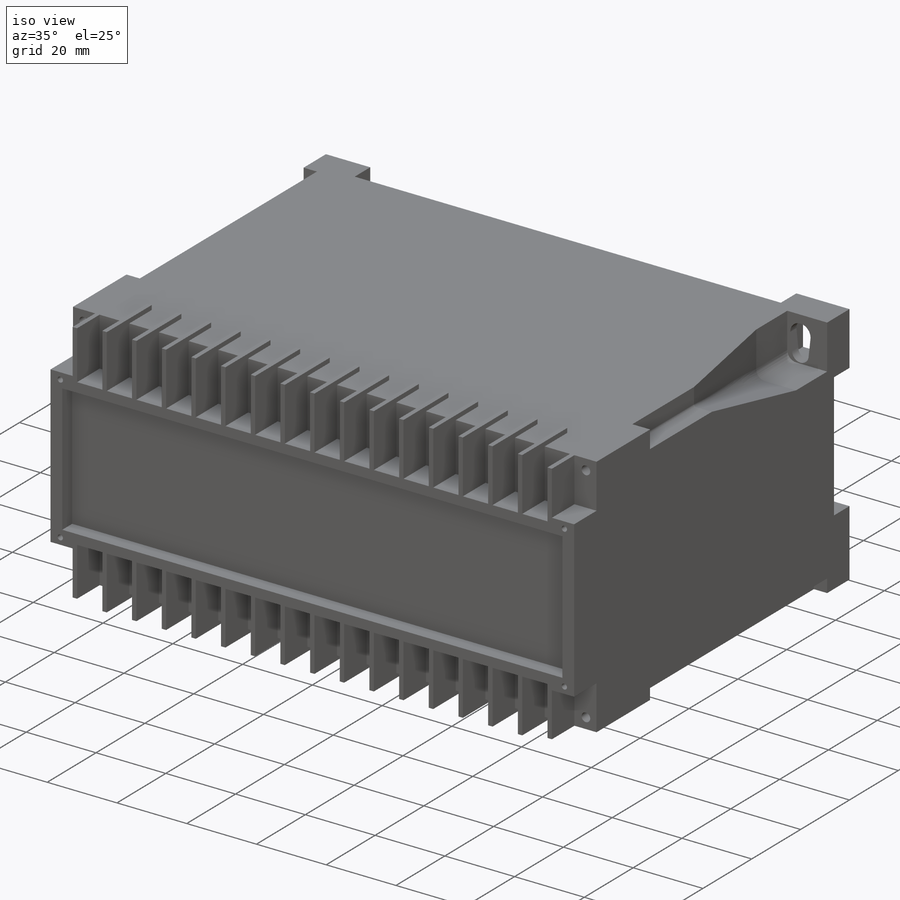
[diagram: iso view]
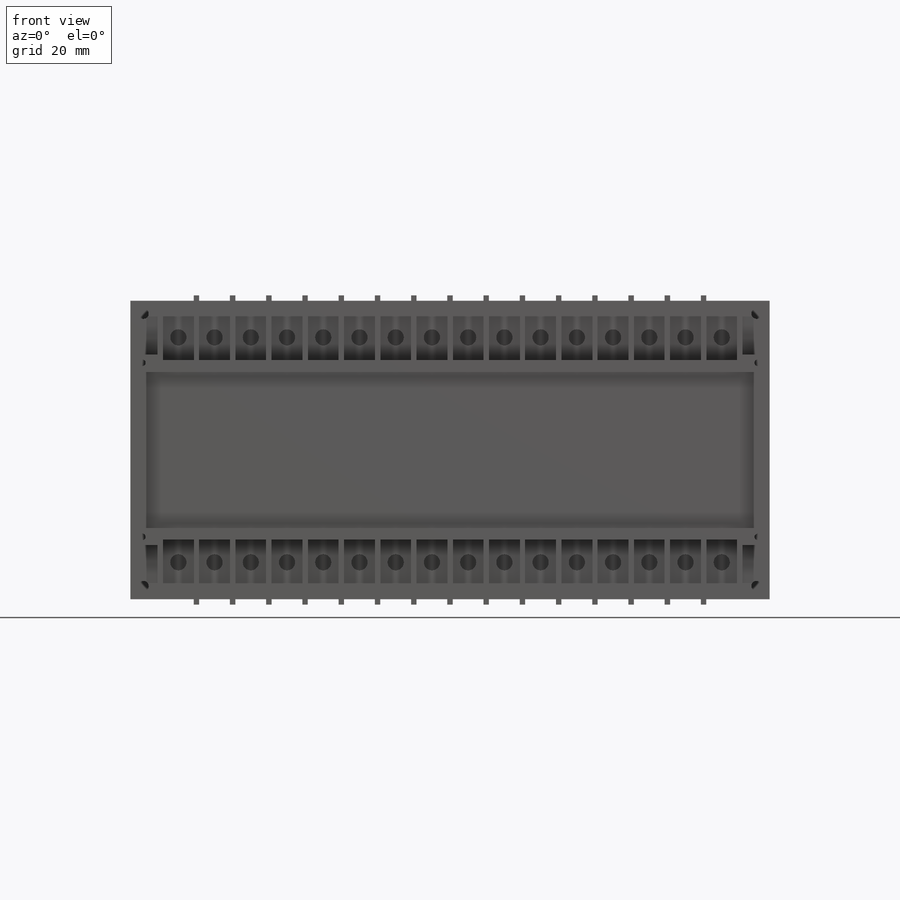
[diagram: front view]
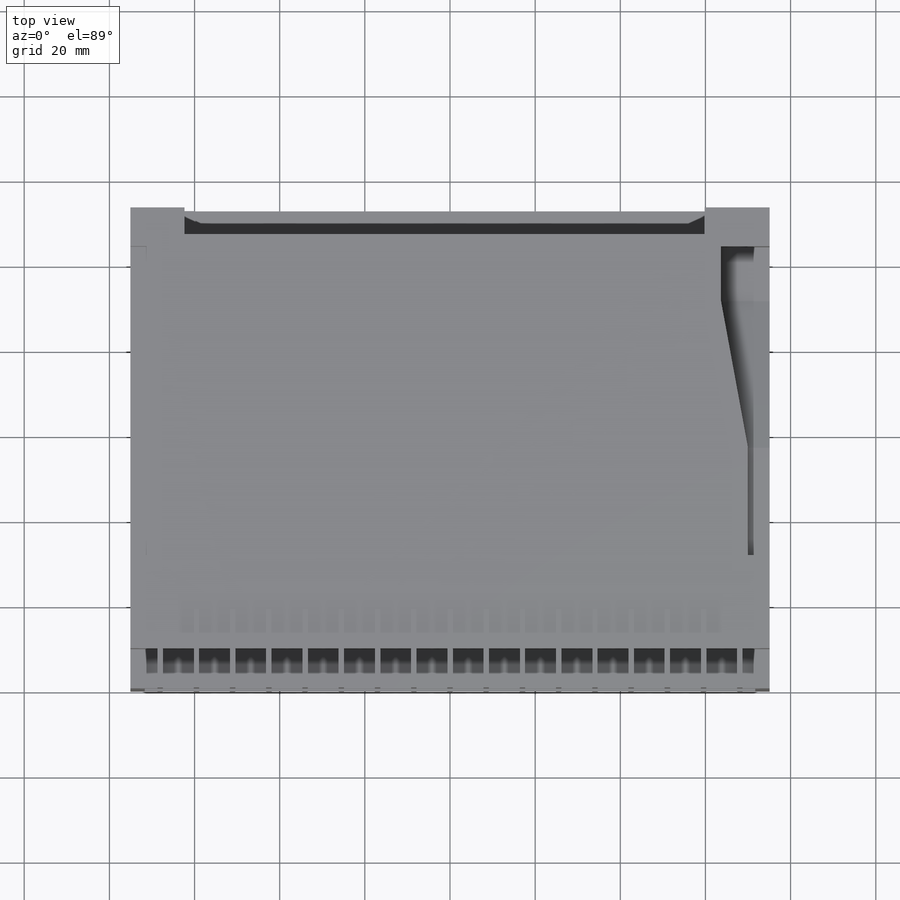
[diagram: top view]
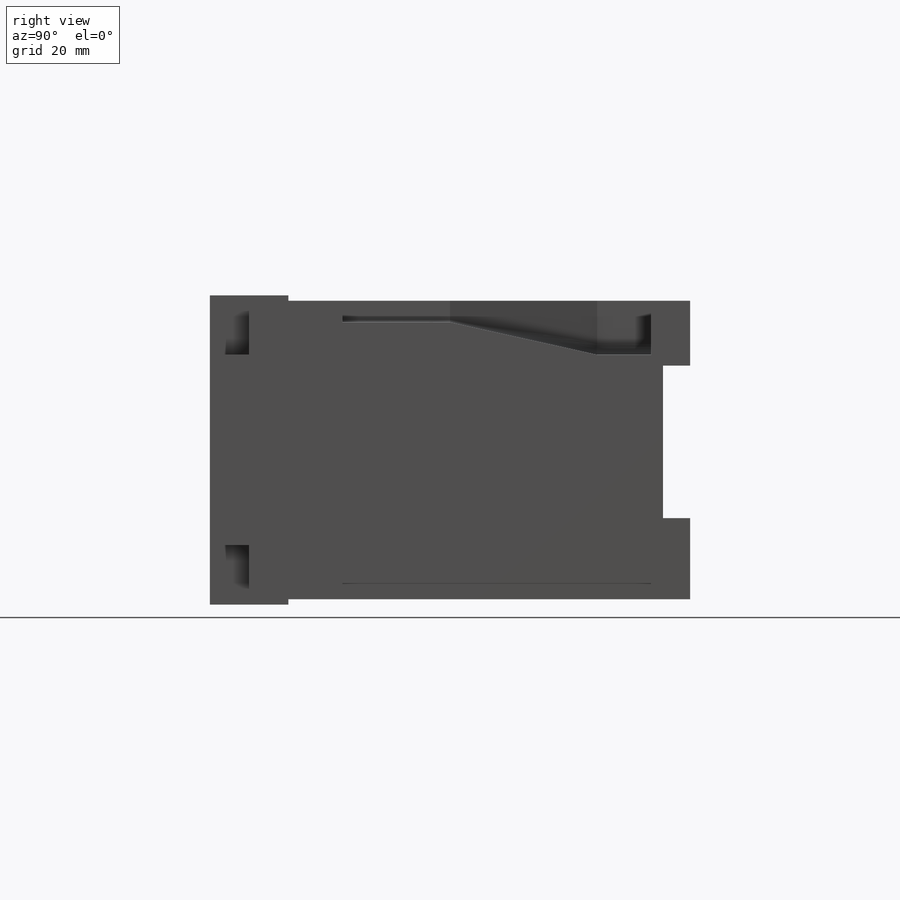
[diagram: right view]
SOLIDWORKS PART (.sldprt)
format: sldprt  version: not decoded by parser v0  size: 750,592 bytes
history: native  units: mm
features: sketch x13, cut_extrude x11, plane x3, extrude x2, mirror x2, pattern_linear x2, fillet x2, material x1 (+11 scaffold rows collapsed)
feature tree (47):
  scaffold x11  (default folders/planes/origin — collapsed)
  material  "Material <not specified>"
  sketch  "Sketch1"  dims[D1=70.104mm D2=150.114mm]
  extrude  "Boss-Extrude1"  Depth=112.776mm
  sketch  "Sketch2"  dims[D1=36.6268mm D2=143.383mm]
  cut_extrude  "Cut-Extrude1"  Depth=4.064mm
  sketch  "Sketch4"  dims[D1=1.524mm D2=144.526mm D3=40.894mm]
  cut_extrude  "Cut-Extrude2"  Depth=12.7mm
  sketch  "Sketch5"  dims[D1=6.35mm D2=12.7mm D3=134.874mm D4=13.97mm]
  cut_extrude  "Cut-Extrude3"  Depth=9.2075mm
  mirror  "Mirror1"
  sketch  "Sketch7"  dims[D1=2.4892mm D2=64.008mm D3=144.018mm]
  cut_extrude  "Cut-Extrude4"  Depth=12.7mm
  sketch  "Sketch8"  dims[D1=1.27mm D2=1.27mm]
  extrude  "Boss-Extrude2"  Depth=18.415mm
  pattern_linear  "LPattern1"  Count1=8 Count2=8 Spacing1=8.509mm Spacing2=8.509mm
  mirror  "Mirror2"
  sketch  "Sketch9"  dims[D1=3.81mm D2=52.832mm]
  cut_extrude  "Cut-Extrude5"  Depth=2.54mm
  pattern_linear  "LPattern2"  Count1=16 Count2=1 Spacing1=8.509mm Spacing2=50mm
  sketch  "Sketch10"  dims[c1.D11=5.842mm c1.D16=4.7752mm c1.D1=12.7mm c1.D2=2.54mm c1.D3=15.24mm c2.D1=19.05mm c2.D4=15.24mm c2.D5=15.24mm c2.D6=12.7mm c2.D7=12.7mm c2.D8=6.35mm c2.D9=2.54mm c2.D10=5.207mm c2.D12=7.6708mm c2.D13=7.7216mm c2.D14=5.207mm c2.D15=49.9872mm c3.D13=134.8232mm]
  cut_extrude  "Cut-Extrude6"  Depth=6.35mm
  sketch  "Sketch20"  dims[D1=0.0mm D2=0.0mm]
  cut_extrude  "Cut-Extrude11"  Depth=2.794mm
  sketch  "Sketch21"  dims[c1.D1=1.905mm c1.D2=1.905mm c1.D3=1.905mm c2.D1=1.905mm]
  cut_extrude  "Cut-Extrude12"  Depth=6.604mm
  plane  "Plane2"  Offset=9.144mm
  plane  "Plane3"  Offset=9.144mm
  sketch  "Sketch12"  dims[D1=12.7mm D2=11.43mm]
  cut_extrude  "Cut-Extrude7"  Depth=12.7mm
  plane  "Plane4"
  sketch  "Sketch15"  dims[D1=5.08mm D2=5.08mm]
  cut_extrude  "Cut-Extrude8"  Depth=12.7mm
  fillet  "Fillet1"  Radius=2.54mm
  fillet  "VarFillet2"  Radius=2.54mm
  sketch  "Sketch17"  dims[D1=3.81mm D2=3.81mm]
  cut_extrude  "Cut-Extrude9"  Depth=12.7mm
decode coverage: 30 of 32 modeling features carry decoded parameters
note: suppression state not decoded; provenance and decode notes live in map.json
